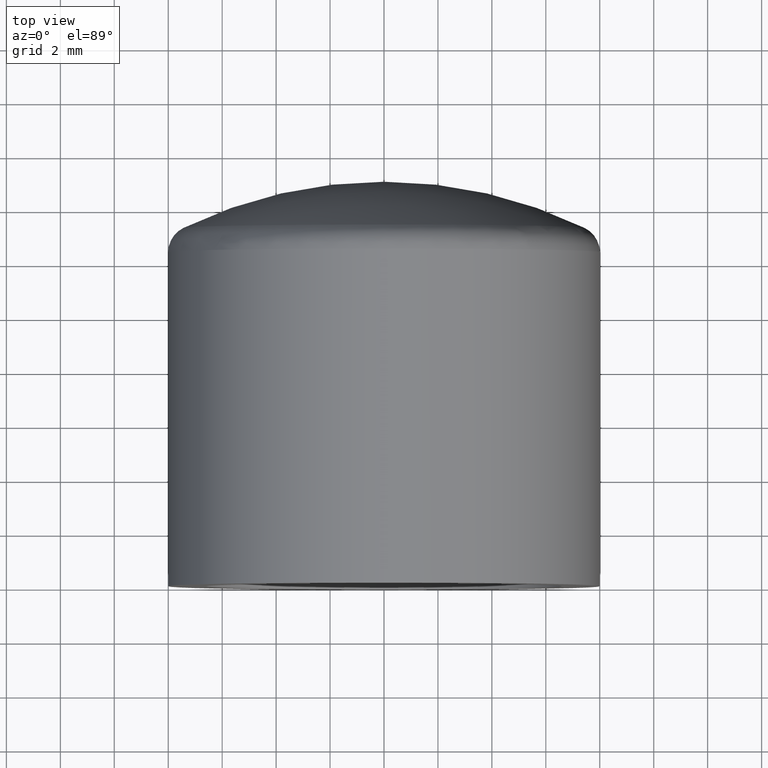
[diagram: clean part render]
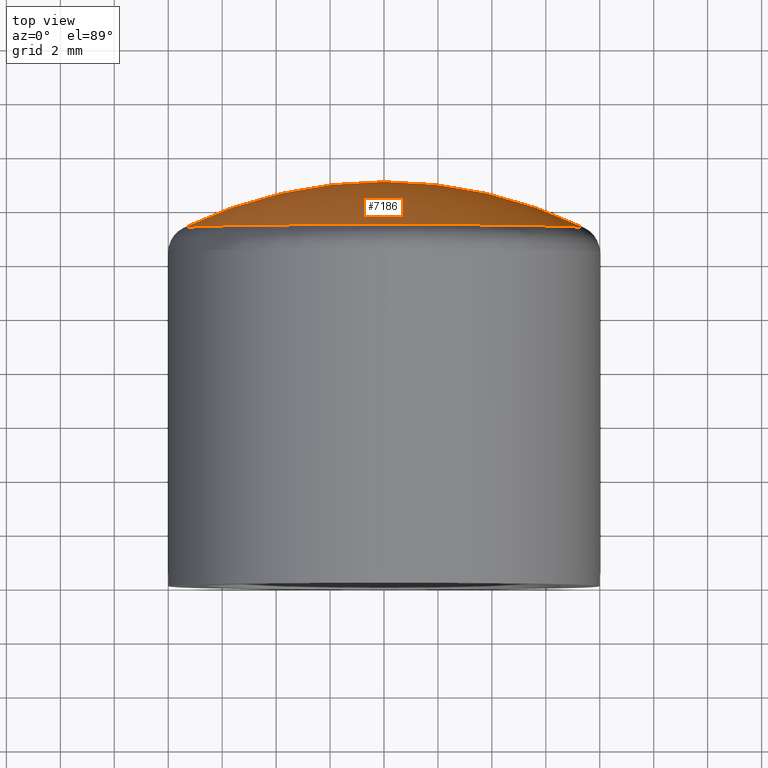
[diagram: same view with one face highlighted and labeled with its STEP entity id]
A machine part, top view. The second image highlights one B-rep face of the part: STEP entity #7186.
In plain terms, the highlighted spherical surface has radius 17 mm.
Its self-contained STEP definition (entity closure, byte-faithful):
#2070 = AXIS2_PLACEMENT_3D ( 'NONE', #13676, #12483, #10408 ) ;
#3323 = VERTEX_POINT ( 'NONE', #9129 ) ;
#4056 = VERTEX_POINT ( 'NONE', #13022 ) ;
#4206 = ORIENTED_EDGE ( 'NONE', *, *, #6749, .T. ) ;
#5709 = EDGE_CURVE ( 'NONE', #4056, #7582, #8827, .T. ) ;
#5945 = DIRECTION ( 'NONE',  ( -1.000000000000000000, 0.000000000000000000, 0.000000000000000000 ) ) ;
#6044 = AXIS2_PLACEMENT_3D ( 'NONE', #8648, #6278, #11880 ) ;
#6140 = AXIS2_PLACEMENT_3D ( 'NONE', #8145, #8045, #5945 ) ;
#6231 = DIRECTION ( 'NONE',  ( 1.224646799147353207E-16, 2.695871144494789058E-34, 1.000000000000000000 ) ) ;
#6278 = DIRECTION ( 'NONE',  ( 0.000000000000000000, -0.000000000000000000, 1.000000000000000000 ) ) ;
#6749 = EDGE_CURVE ( 'NONE', #3323, #7582, #10521, .T. ) ;
#7186 = ADVANCED_FACE ( 'NONE', ( #7246 ), #13254, .T. ) ;
#7246 = FACE_OUTER_BOUND ( 'NONE', #9804, .T. ) ;
#7582 = VERTEX_POINT ( 'NONE', #10255 ) ;
#8045 = DIRECTION ( 'NONE',  ( 0.000000000000000000, 0.000000000000000000, -1.000000000000000000 ) ) ;
#8145 = CARTESIAN_POINT ( 'NONE',  ( 0.000000000000000000, -2.000000000000001776, 0.000000000000000000 ) ) ;
#8155 = ORIENTED_EDGE ( 'NONE', *, *, #12316, .T. ) ;
#8648 = CARTESIAN_POINT ( 'NONE',  ( 0.000000000000000000, -2.000000000000001776, 0.000000000000000000 ) ) ;
#8827 = CIRCLE ( 'NONE', #6140, 17.00000000000000000 ) ;
#9129 = CARTESIAN_POINT ( 'NONE',  ( -7.437499999999990230, 13.28671298055930272, 9.108310568658426644E-16 ) ) ;
#9671 = ORIENTED_EDGE ( 'NONE', *, *, #5709, .F. ) ;
#9804 = EDGE_LOOP ( 'NONE', ( #9671, #8155, #4206 ) ) ;
#10255 = CARTESIAN_POINT ( 'NONE',  ( 7.437499999999990230, 13.28671298055930272, 0.000000000000000000 ) ) ;
#10290 = CIRCLE ( 'NONE', #11812, 17.00000000000000000 ) ;
#10408 = DIRECTION ( 'NONE',  ( 1.000000000000000000, 0.000000000000000000, 0.000000000000000000 ) ) ;
#10521 = CIRCLE ( 'NONE', #2070, 7.437500000000002665 ) ;
#11812 = AXIS2_PLACEMENT_3D ( 'NONE', #12855, #6231, #11886 ) ;
#11880 = DIRECTION ( 'NONE',  ( 1.000000000000000000, 0.000000000000000000, 0.000000000000000000 ) ) ;
#11886 = DIRECTION ( 'NONE',  ( 1.000000000000000000, 0.000000000000000000, -1.224646799147353207E-16 ) ) ;
#12316 = EDGE_CURVE ( 'NONE', #4056, #3323, #10290, .T. ) ;
#12483 = DIRECTION ( 'NONE',  ( -2.201345846305857234E-18, 1.000000000000000000, 0.000000000000000000 ) ) ;
#12855 = CARTESIAN_POINT ( 'NONE',  ( 0.000000000000000000, -2.000000000000001776, 0.000000000000000000 ) ) ;
#13022 = CARTESIAN_POINT ( 'NONE',  ( 1.003526899888050703E-15, 15.00000000000000000, 0.000000000000000000 ) ) ;
#13254 = SPHERICAL_SURFACE ( 'NONE', #6044, 17.00000000000000000 ) ;
#13676 = CARTESIAN_POINT ( 'NONE',  ( -3.365134212342405260E-17, 13.28671298055930272, 0.000000000000000000 ) ) ;